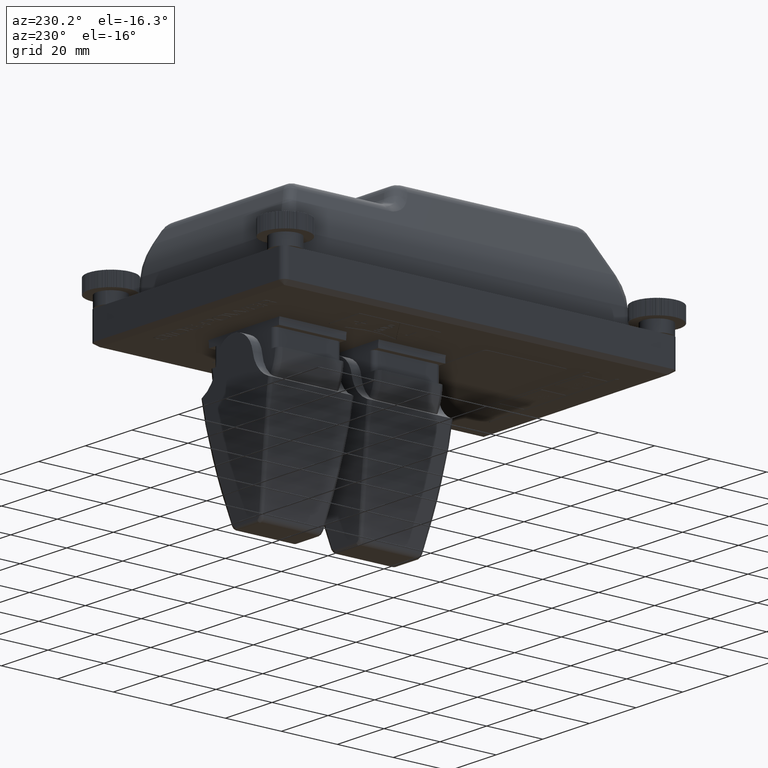
[diagram: clean part render]
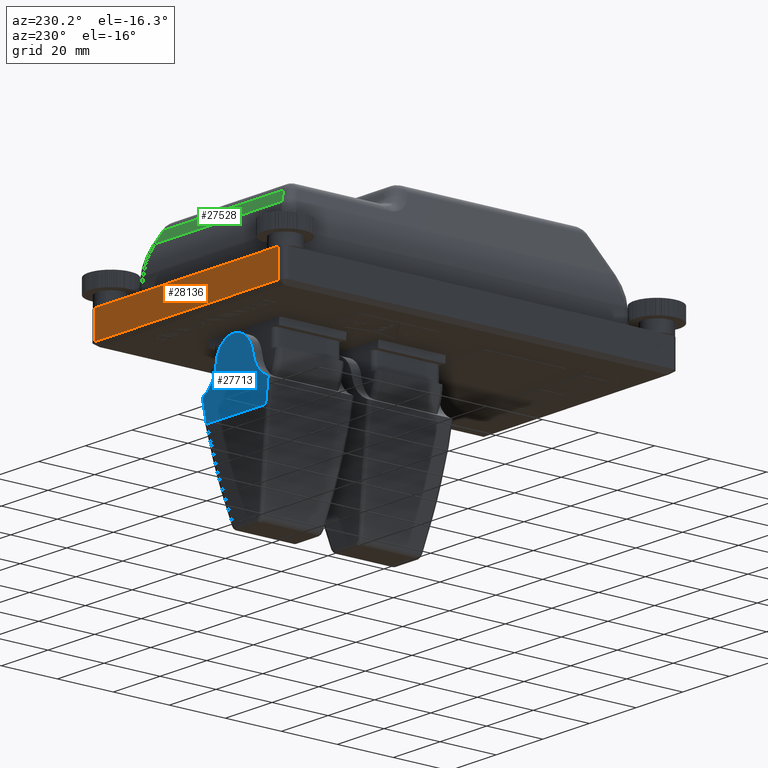
[diagram: same view with three faces highlighted in distinct colors, each labeled with its STEP entity id]
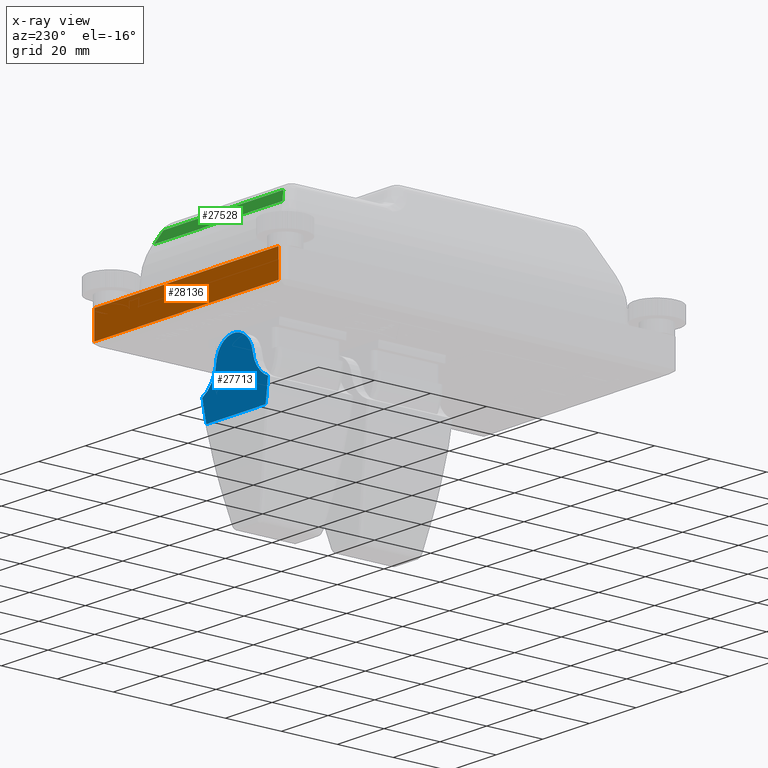
[diagram: x-ray of the same camera — body ghosted, the three highlighted faces saturated]
A machine part, auxiliary view with three faces highlighted in distinct colors.
The next image is the same camera in x-ray (body ghosted, the three faces saturated) — at least one of them is partly hidden behind the body in this view.
Their STEP definitions:

[orange] entity #28136 — the highlighted planar face has unit normal (-0, 1, 0).
#761=PLANE('',#31185);
#2219=FACE_OUTER_BOUND('',#3745,.T.);
#3745=EDGE_LOOP('',(#24668,#24669,#24670,#24671,#24672,#24673));
#6252=LINE('',#44733,#8136);
#6256=LINE('',#44776,#8140);
#6259=LINE('',#44827,#8143);
#7319=LINE('',#52789,#9203);
#7331=LINE('',#53215,#9215);
#7332=LINE('',#53217,#9216);
#8136=VECTOR('',#36781,4.87162599565136);
#8140=VECTOR('',#36811,4.87162280327735);
#8143=VECTOR('',#36834,69.3103886477147);
#9203=VECTOR('',#39136,79.0536374466434);
#9215=VECTOR('',#39158,9.59529946162075);
#9216=VECTOR('',#39161,9.59529946162075);
#11270=VERTEX_POINT('',#44724);
#11272=VERTEX_POINT('',#44731);
#11282=VERTEX_POINT('',#44774);
#11283=VERTEX_POINT('',#44775);
#12350=VERTEX_POINT('',#52760);
#12351=VERTEX_POINT('',#52787);
#14788=EDGE_CURVE('',#11272,#11270,#6252,.T.);
#14802=EDGE_CURVE('',#11282,#11283,#6256,.T.);
#14814=EDGE_CURVE('',#11283,#11272,#6259,.T.);
#16448=EDGE_CURVE('',#12351,#12350,#7319,.T.);
#16463=EDGE_CURVE('',#11282,#12350,#7331,.T.);
#16464=EDGE_CURVE('',#11270,#12351,#7332,.T.);
#24668=ORIENTED_EDGE('',*,*,#16448,.F.);
#24669=ORIENTED_EDGE('',*,*,#16464,.F.);
#24670=ORIENTED_EDGE('',*,*,#14788,.F.);
#24671=ORIENTED_EDGE('',*,*,#14814,.F.);
#24672=ORIENTED_EDGE('',*,*,#14802,.F.);
#24673=ORIENTED_EDGE('',*,*,#16463,.T.);
#28136=ADVANCED_FACE('',(#2219),#761,.T.);
#31185=AXIS2_PLACEMENT_3D('',#53216,#39159,#39160);
#36781=DIRECTION('',(-1.,-2.1065881226044E-16,-1.11844083693858E-31));
#36811=DIRECTION('',(-1.,-2.1065881226044E-16,-1.11844083693858E-31));
#36834=DIRECTION('',(-1.,-2.1065881226044E-16,-1.11844083693858E-31));
#39136=DIRECTION('',(1.,2.1065881226044E-16,1.11844083693858E-31));
#39158=DIRECTION('',(0.,5.50808322294633E-16,-1.));
#39159=DIRECTION('center_axis',(-2.1065881226044E-16,1.,5.50808322294633E-16));
#39160=DIRECTION('ref_axis',(1.,0.,0.));
#39161=DIRECTION('',(0.,5.50808322294633E-16,-1.));
#44724=CARTESIAN_POINT('',(-39.5268195214146,70.5633835386875,-38.020585));
#44731=CARTESIAN_POINT('',(-34.6551935257633,70.5633835386875,-38.020585));
#44733=CARTESIAN_POINT('',(39.5268179252288,70.5633835386875,-38.020585));
#44774=CARTESIAN_POINT('',(39.5268179252288,70.5633835386875,-38.020585));
#44775=CARTESIAN_POINT('',(34.6551951219514,70.5633835386875,-38.020585));
#44776=CARTESIAN_POINT('',(39.5268179252288,70.5633835386875,-38.020585));
#44827=CARTESIAN_POINT('',(39.5268179252288,70.5633835386875,-38.020585));
#52760=CARTESIAN_POINT('',(39.5268179252288,70.5633835386875,-47.6158844616208));
#52787=CARTESIAN_POINT('',(-39.5268195214146,70.5633835386875,-47.6158844616208));
#52789=CARTESIAN_POINT('',(-19.763410159754,70.5633835386875,-47.6158844616208));
#53215=CARTESIAN_POINT('',(39.5268179252288,70.5633835386875,-38.020585));
#53216=CARTESIAN_POINT('Origin',(-39.5268195214146,70.5633835386875,-38.020585));
#53217=CARTESIAN_POINT('',(-39.5268195214146,70.5633835386875,-38.020585));

[blue] entity #27713 — the highlighted planar face has unit normal (0, 0.9994, -0.0349).
#364=ELLIPSE('',#30805,322.503787070403,322.307326495434);
#366=ELLIPSE('',#30813,322.503787070403,322.307326495434);
#367=ELLIPSE('',#30814,10.2523563734998,10.2461109155899);
#368=ELLIPSE('',#30815,10.7131419135127,10.7066157575281);
#497=PLANE('',#30812);
#1796=FACE_OUTER_BOUND('',#3280,.T.);
#3280=EDGE_LOOP('',(#22410,#22411,#22412,#22413,#22414,#22415));
#6543=LINE('',#47915,#8427);
#8427=VECTOR('',#37626,25.3777899331065);
#9425=B_SPLINE_CURVE_WITH_KNOTS('',3,(#47921,#47922,#47923,#47924,#47925,
#47926,#47927,#47928,#47929,#47930,#47931,#47932,#47933,#47934,#47935,#47936,
#47937,#47938),.UNSPECIFIED.,.F.,.F.,(4,2,2,2,2,2,2,2,4),(0.,0.307997707972886,
0.616724305299509,0.926132510549859,1.23535166145281,1.54391875012527,1.85269712639938,
2.08015673882009,2.30830816359563),.UNSPECIFIED.);
#11639=VERTEX_POINT('',#47798);
#11640=VERTEX_POINT('',#47799);
#11647=VERTEX_POINT('',#47914);
#11648=VERTEX_POINT('',#47916);
#11649=VERTEX_POINT('',#47918);
#11650=VERTEX_POINT('',#47920);
#15359=EDGE_CURVE('',#11639,#11640,#364,.T.);
#15372=EDGE_CURVE('',#11639,#11647,#6543,.T.);
#15373=EDGE_CURVE('',#11648,#11647,#366,.T.);
#15374=EDGE_CURVE('',#11649,#11648,#367,.T.);
#15375=EDGE_CURVE('',#11650,#11649,#9425,.T.);
#15376=EDGE_CURVE('',#11640,#11650,#368,.T.);
#22410=ORIENTED_EDGE('',*,*,#15359,.F.);
#22411=ORIENTED_EDGE('',*,*,#15372,.T.);
#22412=ORIENTED_EDGE('',*,*,#15373,.F.);
#22413=ORIENTED_EDGE('',*,*,#15374,.F.);
#22414=ORIENTED_EDGE('',*,*,#15375,.F.);
#22415=ORIENTED_EDGE('',*,*,#15376,.F.);
#27713=ADVANCED_FACE('',(#1796),#497,.T.);
#30805=AXIS2_PLACEMENT_3D('',#47800,#37609,#37610);
#30812=AXIS2_PLACEMENT_3D('',#47913,#37624,#37625);
#30813=AXIS2_PLACEMENT_3D('',#47917,#37627,#37628);
#30814=AXIS2_PLACEMENT_3D('',#47919,#37629,#37630);
#30815=AXIS2_PLACEMENT_3D('',#47939,#37631,#37632);
#37609=DIRECTION('center_axis',(-1.27598178760436E-15,-0.999390827076006,
0.0348994950728102));
#37610=DIRECTION('ref_axis',(4.32104054705343E-14,-0.0348994950728102,-0.999390827076006));
#37624=DIRECTION('center_axis',(1.27598178760436E-15,0.999390827076006,
-0.0348994950728102));
#37625=DIRECTION('ref_axis',(0.,0.0348994950728105,0.999390827076006));
#37626=DIRECTION('',(-1.,0.,0.));
#37627=DIRECTION('center_axis',(-1.27598178760436E-15,-0.999390827076006,
0.0348994950728102));
#37628=DIRECTION('ref_axis',(1.98288667551209E-14,-0.0348994950728102,-0.999390827076006));
#37629=DIRECTION('center_axis',(1.27598178760436E-15,0.999390827076006,
-0.0348994950728102));
#37630=DIRECTION('ref_axis',(2.07780567792761E-14,-0.0348994950728102,-0.999390827076006));
#37631=DIRECTION('center_axis',(1.27598178760436E-15,0.999390827076006,
-0.0348994950728102));
#37632=DIRECTION('ref_axis',(8.08328654841539E-15,-0.0348994950728102,-0.999390827076006));
#47798=CARTESIAN_POINT('',(12.6888949657187,52.8719745390377,-73.9139431119089));
#47799=CARTESIAN_POINT('',(14.0810603982889,53.146489223954,-66.0528706972307));
#47800=CARTESIAN_POINT('Origin',(-303.9596039452,54.9717963023837,-13.7829124364225));
#47913=CARTESIAN_POINT('Origin',(-8.34497794057929E-10,52.7285729625748,
-78.0204271686619));
#47914=CARTESIAN_POINT('',(-12.6888949673877,52.8719745390377,-73.9139431119089));
#47915=CARTESIAN_POINT('',(0.,52.8719745390377,-73.9139431119088));
#47916=CARTESIAN_POINT('',(-14.0767020230939,53.1455634052249,-66.0793826780915));
#47917=CARTESIAN_POINT('Origin',(303.959603943531,54.9717963023829,-13.7829124364225));
#47918=CARTESIAN_POINT('',(-7.84711441781341,53.4344063718022,-57.808001941479));
#47919=CARTESIAN_POINT('Origin',(-18.0246329640435,53.4757385362246,-56.6244035570112));
#47920=CARTESIAN_POINT('',(7.84711282165172,53.434406371814,-57.8080019411414));
#47921=CARTESIAN_POINT('Ctrl Pts',(7.84711282165172,53.434406371814,-57.8080019411414));
#47922=CARTESIAN_POINT('Ctrl Pts',(7.72858769470696,53.4699966803033,-56.7888288051753));
#47923=CARTESIAN_POINT('Ctrl Pts',(7.41276079889839,53.5044290928327,-55.8028134727418));
#47924=CARTESIAN_POINT('Ctrl Pts',(6.42051838405165,53.56723800224,-54.0042015504376));
#47925=CARTESIAN_POINT('Ctrl Pts',(5.75266716295162,53.5949981788211,-53.2092540655166));
#47926=CARTESIAN_POINT('Ctrl Pts',(4.14789443293704,53.6400704271376,-51.9185536863514));
#47927=CARTESIAN_POINT('Ctrl Pts',(3.22597638723935,53.6569218576483,-51.435991831505));
#47928=CARTESIAN_POINT('Ctrl Pts',(1.24953504379098,53.6773061275555,-50.8522626881621));
#47929=CARTESIAN_POINT('Ctrl Pts',(0.214553289121033,53.6806435834113,-50.7566904524885));
#47930=CARTESIAN_POINT('Ctrl Pts',(-1.83139116580924,53.6732859422455,-50.9673857383262));
#47931=CARTESIAN_POINT('Ctrl Pts',(-2.82294540910804,53.6626811637507,-51.2710668755111));
#47932=CARTESIAN_POINT('Ctrl Pts',(-4.63409881759778,53.6288263578527,-52.2405417173785));
#47933=CARTESIAN_POINT('Ctrl Pts',(-5.43665040771688,53.6058847231936,-52.8975042089161));
#47934=CARTESIAN_POINT('Ctrl Pts',(-6.57283056007858,53.5578495908578,-54.273050489274));
#47935=CARTESIAN_POINT('Ctrl Pts',(-6.96839120563341,53.535164579596,-54.9226642478633));
#47936=CARTESIAN_POINT('Ctrl Pts',(-7.56359515746664,53.4864810972449,-56.3167768443453));
#47937=CARTESIAN_POINT('Ctrl Pts',(-7.75942869005228,53.4607363339186,-57.0540104421328));
#47938=CARTESIAN_POINT('Ctrl Pts',(-7.84711441781341,53.4344063718022,-57.808001941479));
#47939=CARTESIAN_POINT('Origin',(18.4434519574775,53.4879299864458,-56.2752860842668));

[green] entity #27528 — the highlighted planar face has unit normal (-0, 0.9063, 0.4226).
#428=PLANE('',#30606);
#1611=FACE_OUTER_BOUND('',#3083,.T.);
#3083=EDGE_LOOP('',(#21453,#21454,#21455,#21456));
#6288=LINE('',#45054,#8172);
#6292=LINE('',#45086,#8176);
#6293=LINE('',#45090,#8177);
#6294=LINE('',#45091,#8178);
#8172=VECTOR('',#36945,4.72544402115089);
#8176=VECTOR('',#36959,55.0461415761971);
#8177=VECTOR('',#36964,51.3670845626496);
#8178=VECTOR('',#36965,4.72544402115092);
#11319=VERTEX_POINT('',#45046);
#11321=VERTEX_POINT('',#45052);
#11324=VERTEX_POINT('',#45085);
#11325=VERTEX_POINT('',#45089);
#14870=EDGE_CURVE('',#11319,#11321,#6288,.T.);
#14876=EDGE_CURVE('',#11321,#11324,#6292,.T.);
#14878=EDGE_CURVE('',#11325,#11319,#6293,.T.);
#14879=EDGE_CURVE('',#11324,#11325,#6294,.T.);
#21453=ORIENTED_EDGE('',*,*,#14870,.F.);
#21454=ORIENTED_EDGE('',*,*,#14878,.F.);
#21455=ORIENTED_EDGE('',*,*,#14879,.F.);
#21456=ORIENTED_EDGE('',*,*,#14876,.F.);
#27528=ADVANCED_FACE('',(#1611),#428,.T.);
#30606=AXIS2_PLACEMENT_3D('',#45088,#36962,#36963);
#36945=DIRECTION('',(-0.389281620635025,0.389281620635025,-0.834817129478988));
#36959=DIRECTION('',(1.,2.85897003145235E-16,1.58625397723804E-16));
#36962=DIRECTION('center_axis',(-3.26148670094929E-16,0.90630778703665,
0.4226182617407));
#36963=DIRECTION('ref_axis',(-1.,0.,-3.5527136788005E-16));
#36964=DIRECTION('',(-1.,-1.37507179141616E-16,-4.76848402232761E-16));
#36965=DIRECTION('',(-0.389281620635025,-0.389281620635026,0.834817129478987));
#45046=CARTESIAN_POINT('',(-25.7031959966493,57.4024655538295,-16.4074936912966));
#45052=CARTESIAN_POINT('',(-27.542724503423,59.2419940606032,-20.3523753045474));
#45054=CARTESIAN_POINT('',(-20.7197042817642,52.4189738389444,-5.72036122042341));
#45085=CARTESIAN_POINT('',(27.503417072774,59.2419940606032,-20.3523753045474));
#45086=CARTESIAN_POINT('',(-32.6629329658482,59.2419940606032,-20.3523753045474));
#45088=CARTESIAN_POINT('Origin',(-32.315364573643,61.2957107697133,-24.7565850000001));
#45089=CARTESIAN_POINT('',(25.6638885660003,57.4024655538295,-16.4074936912966));
#45090=CARTESIAN_POINT('',(-16.1675091444838,57.4024655538295,-16.4074936912966));
#45091=CARTESIAN_POINT('',(25.0750620758779,56.8136390637071,-15.1447512082497));